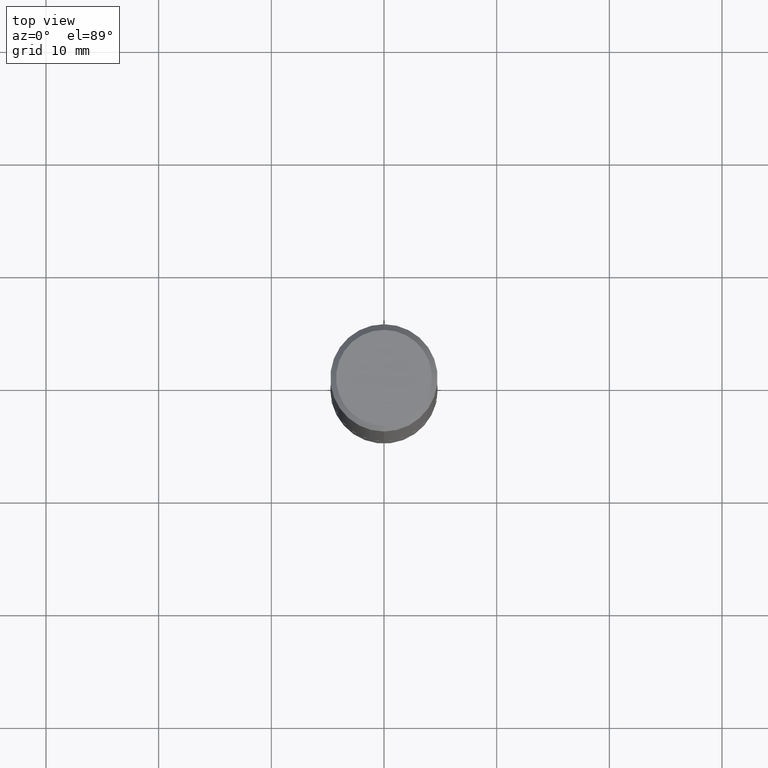
[diagram: clean part render]
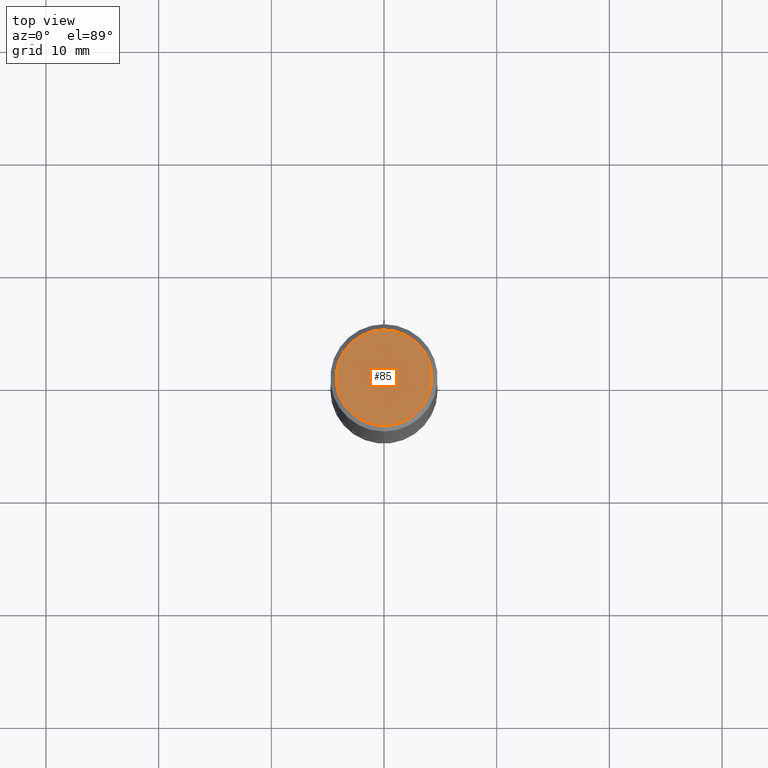
[diagram: same view with one face highlighted and labeled with its STEP entity id]
A machine part, top view. The second image highlights one B-rep face of the part: STEP entity #85.
In plain terms, the highlighted planar face has unit normal (0, -0, -1).
Its self-contained STEP definition (entity closure, byte-faithful):
#85 = ADVANCED_FACE ( 'NONE', ( #416 ), #293, .F. ) ;
#95 = EDGE_LOOP ( 'NONE', ( #399, #400 ) ) ;
#107 = AXIS2_PLACEMENT_3D ( 'NONE', #304, #117, #119 ) ;
#111 = EDGE_CURVE ( 'NONE', #380, #157, #310, .T. ) ;
#117 = DIRECTION ( 'NONE',  ( 2.445162114595160014E-29, -3.491920538655792902E-15, -1.000000000000000000 ) ) ;
#119 = DIRECTION ( 'NONE',  ( 6.982962677686265922E-15, 1.000000000000000000, -3.491920538655792902E-15 ) ) ;
#140 = CARTESIAN_POINT ( 'NONE',  ( -5.236590585173793708E-46, 7.478341868521650963E-32, 2.141612841912039052E-17 ) ) ;
#150 = CARTESIAN_POINT ( 'NONE',  ( 1.239475875289312696E-15, 0.1675000000000000100, -5.634805618057250307E-16 ) ) ;
#156 = AXIS2_PLACEMENT_3D ( 'NONE', #274, #364, #334 ) ;
#157 = VERTEX_POINT ( 'NONE', #150 ) ;
#179 = DIRECTION ( 'NONE',  ( -6.982962677686265922E-15, -1.000000000000000000, 3.491920538655792902E-15 ) ) ;
#258 = CIRCLE ( 'NONE', #290, 0.1675000000000000100 ) ;
#274 = CARTESIAN_POINT ( 'NONE',  ( -5.236590585173793708E-46, 7.478341868521650963E-32, 2.141612841912039052E-17 ) ) ;
#290 = AXIS2_PLACEMENT_3D ( 'NONE', #140, #415, #179 ) ;
#293 = PLANE ( 'NONE',  #107 ) ;
#304 = CARTESIAN_POINT ( 'NONE',  ( 1.169646248512449595E-15, 0.1675000000000000100, -5.741886260152851058E-16 ) ) ;
#310 = CIRCLE ( 'NONE', #156, 0.1675000000000000100 ) ;
#334 = DIRECTION ( 'NONE',  ( -6.982962677686265922E-15, -1.000000000000000000, 3.491920538655792902E-15 ) ) ;
#364 = DIRECTION ( 'NONE',  ( -2.445162114595160575E-29, 3.491920538655792507E-15, 1.000000000000000000 ) ) ;
#373 = CARTESIAN_POINT ( 'NONE',  ( -1.217738394604446837E-15, -0.1675000000000000100, 6.063128186439657255E-16 ) ) ;
#379 = EDGE_CURVE ( 'NONE', #157, #380, #258, .T. ) ;
#380 = VERTEX_POINT ( 'NONE', #373 ) ;
#399 = ORIENTED_EDGE ( 'NONE', *, *, #379, .T. ) ;
#400 = ORIENTED_EDGE ( 'NONE', *, *, #111, .T. ) ;
#415 = DIRECTION ( 'NONE',  ( -2.445162114595160575E-29, 3.491920538655792507E-15, 1.000000000000000000 ) ) ;
#416 = FACE_OUTER_BOUND ( 'NONE', #95, .T. ) ;